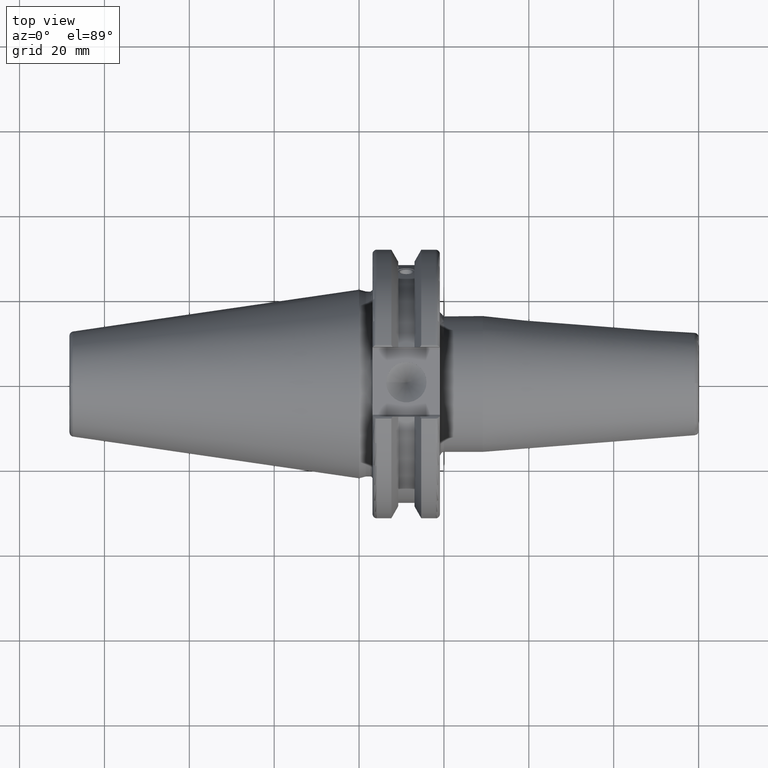
[diagram: clean part render]
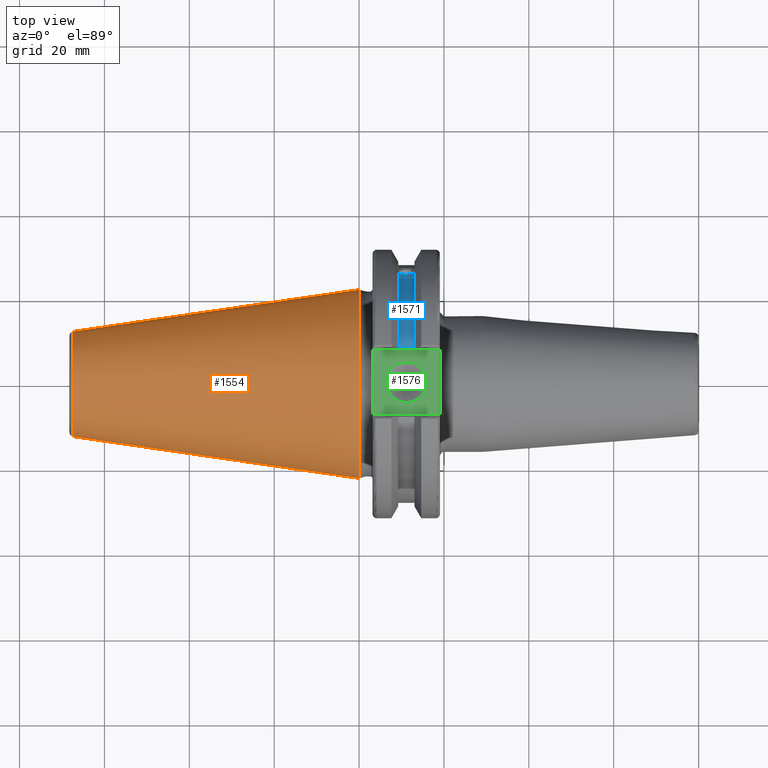
[diagram: same view with three faces highlighted in distinct colors, each labeled with its STEP entity id]
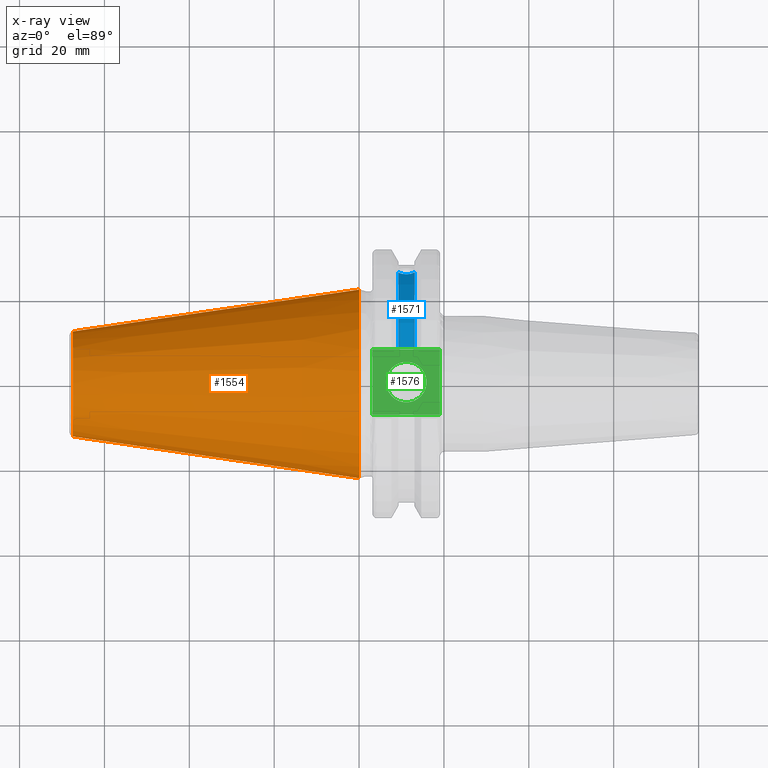
[diagram: x-ray of the same camera — body ghosted, the three highlighted faces saturated]
A machine part, top view with three faces highlighted in distinct colors.
The next image is the same camera in x-ray (body ghosted, the three faces saturated) — at least one of them is partly hidden behind the body in this view.
Their STEP definitions:

[orange] entity #1554 — the highlighted conical surface has half-angle 8.297 deg.
#182=LINE('',#2954,#276);
#276=VECTOR('',#2150,17.2484375);
#303=CONICAL_SURFACE('',#1747,17.2484375,0.144812498238939);
#421=FACE_OUTER_BOUND('',#523,.T.);
#523=EDGE_LOOP('',(#1354,#1355,#1356,#1357,#1358));
#613=CIRCLE('',#1741,12.3966635780937);
#614=CIRCLE('',#1742,12.3966635780937);
#618=CIRCLE('',#1748,22.225);
#769=VERTEX_POINT('',#2941);
#770=VERTEX_POINT('',#2942);
#773=VERTEX_POINT('',#2952);
#979=EDGE_CURVE('',#769,#770,#613,.T.);
#980=EDGE_CURVE('',#770,#769,#614,.T.);
#984=EDGE_CURVE('',#773,#773,#618,.T.);
#985=EDGE_CURVE('',#773,#770,#182,.T.);
#1354=ORIENTED_EDGE('',*,*,#984,.F.);
#1355=ORIENTED_EDGE('',*,*,#985,.T.);
#1356=ORIENTED_EDGE('',*,*,#979,.F.);
#1357=ORIENTED_EDGE('',*,*,#980,.F.);
#1358=ORIENTED_EDGE('',*,*,#985,.F.);
#1554=ADVANCED_FACE('',(#421),#303,.T.);
#1741=AXIS2_PLACEMENT_3D('',#2943,#2134,#2135);
#1742=AXIS2_PLACEMENT_3D('',#2944,#2136,#2137);
#1747=AXIS2_PLACEMENT_3D('',#2951,#2146,#2147);
#1748=AXIS2_PLACEMENT_3D('',#2953,#2148,#2149);
#2134=DIRECTION('center_axis',(-1.,0.,0.));
#2135=DIRECTION('ref_axis',(0.,-1.,3.06161699786838E-17));
#2136=DIRECTION('center_axis',(-1.,0.,0.));
#2137=DIRECTION('ref_axis',(0.,-1.,3.06161699786838E-17));
#2146=DIRECTION('center_axis',(1.,0.,0.));
#2147=DIRECTION('ref_axis',(0.,1.,0.));
#2148=DIRECTION('center_axis',(1.,0.,0.));
#2149=DIRECTION('ref_axis',(0.,0.,-1.));
#2150=DIRECTION('',(-0.989532981063282,0.144306893071729,1.76724974695192E-17));
#2941=CARTESIAN_POINT('',(-67.3943068930717,-1.5181534371019E-15,12.3966635780937));
#2942=CARTESIAN_POINT('',(-67.3943068930718,-12.3966635780937,-1.5181534371019E-15));
#2943=CARTESIAN_POINT('Origin',(-67.3943068930717,0.,-1.89769179637738E-15));
#2944=CARTESIAN_POINT('Origin',(-67.3943068930717,0.,-1.89769179637738E-15));
#2951=CARTESIAN_POINT('Origin',(-34.125,0.,0.));
#2952=CARTESIAN_POINT('',(0.,-22.225,-2.72177751110499E-15));
#2953=CARTESIAN_POINT('Origin',(0.,0.,0.));
#2954=CARTESIAN_POINT('',(-34.125,-17.2484375,-2.11232437746682E-15));

[blue] entity #1571 — the highlighted cylindrical surface (partial cylindrical patch) has radius 28.15 mm, axis along (1, 0, 0).
#61=B_SPLINE_CURVE_WITH_KNOTS('',3,(#2633,#2634,#2635,#2636,#2637,#2638,
#2639,#2640,#2641,#2642,#2643,#2644,#2645,#2646,#2647),.UNSPECIFIED.,.F.,
 .F.,(4,2,2,3,2,2,4),(-0.231446873660082,-0.158271583089134,-0.0791357915445672,
0.,0.0791357915445672,0.158271583089134,0.231446873660465),
 .UNSPECIFIED.);
#105=CYLINDRICAL_SURFACE('',#1769,28.15);
#190=LINE('',#2975,#284);
#284=VECTOR('',#2170,10.);
#438=FACE_OUTER_BOUND('',#540,.T.);
#540=EDGE_LOOP('',(#1430,#1431,#1432,#1433));
#622=CIRCLE('',#1768,28.15);
#623=CIRCLE('',#1770,28.15);
#710=VERTEX_POINT('',#2630);
#711=VERTEX_POINT('',#2632);
#776=VERTEX_POINT('',#2972);
#777=VERTEX_POINT('',#2974);
#892=EDGE_CURVE('',#711,#710,#61,.T.);
#994=EDGE_CURVE('',#777,#776,#190,.T.);
#1007=EDGE_CURVE('',#710,#777,#622,.T.);
#1008=EDGE_CURVE('',#711,#776,#623,.T.);
#1430=ORIENTED_EDGE('',*,*,#892,.T.);
#1431=ORIENTED_EDGE('',*,*,#1007,.T.);
#1432=ORIENTED_EDGE('',*,*,#994,.T.);
#1433=ORIENTED_EDGE('',*,*,#1008,.F.);
#1571=ADVANCED_FACE('',(#438),#105,.T.);
#1768=AXIS2_PLACEMENT_3D('',#3004,#2205,#2206);
#1769=AXIS2_PLACEMENT_3D('',#3005,#2207,#2208);
#1770=AXIS2_PLACEMENT_3D('',#3006,#2209,#2210);
#2170=DIRECTION('',(1.,0.,0.));
#2205=DIRECTION('center_axis',(1.,0.,0.));
#2206=DIRECTION('ref_axis',(0.,0.,-1.));
#2207=DIRECTION('center_axis',(1.,0.,0.));
#2208=DIRECTION('ref_axis',(0.,1.,0.));
#2209=DIRECTION('center_axis',(1.,0.,0.));
#2210=DIRECTION('ref_axis',(0.,0.,-1.));
#2630=CARTESIAN_POINT('',(9.2191,26.1451788594704,10.4332220529567));
#2632=CARTESIAN_POINT('',(13.0491,26.1451788594704,10.4332220529568));
#2633=CARTESIAN_POINT('Ctrl Pts',(13.0491,26.1451788594704,10.4332220529568));
#2634=CARTESIAN_POINT('Ctrl Pts',(12.9428694290343,26.0576536126147,10.6525563316816));
#2635=CARTESIAN_POINT('Ctrl Pts',(12.791379862294,25.9751489313128,10.8509873904882));
#2636=CARTESIAN_POINT('Ctrl Pts',(12.4326293734259,25.8346412777187,11.1816210830117));
#2637=CARTESIAN_POINT('Ctrl Pts',(12.1965549887012,25.7695111693635,11.3298867884858));
#2638=CARTESIAN_POINT('Ctrl Pts',(11.6791874573612,25.6822868299377,11.5262389251846));
#2639=CARTESIAN_POINT('Ctrl Pts',(11.3978859718152,25.6603958057616,11.5743935949859));
#2640=CARTESIAN_POINT('Ctrl Pts',(11.1341,25.6603958057616,11.5743935949859));
#2641=CARTESIAN_POINT('Ctrl Pts',(10.8703140281848,25.6603958057616,11.5743935949859));
#2642=CARTESIAN_POINT('Ctrl Pts',(10.5890125426388,25.6822868299377,11.5262389251846));
#2643=CARTESIAN_POINT('Ctrl Pts',(10.0716450112988,25.7695111693635,11.3298867884858));
#2644=CARTESIAN_POINT('Ctrl Pts',(9.83557062657411,25.8346412777187,11.1816210830117));
#2645=CARTESIAN_POINT('Ctrl Pts',(9.4768201377051,25.9751489313131,10.8509873904873));
#2646=CARTESIAN_POINT('Ctrl Pts',(9.32533057097183,26.0576536126096,10.6525563316942));
#2647=CARTESIAN_POINT('Ctrl Pts',(9.2191,26.1451788594704,10.4332220529567));
#2972=CARTESIAN_POINT('',(13.0491,8.19,26.932255754021));
#2974=CARTESIAN_POINT('',(9.2191,8.19,26.932255754021));
#2975=CARTESIAN_POINT('',(11.1341,8.19,26.932255754021));
#3004=CARTESIAN_POINT('Origin',(9.2191,0.,0.));
#3005=CARTESIAN_POINT('Origin',(11.1341,0.,0.));
#3006=CARTESIAN_POINT('Origin',(13.0491,0.,0.));

[green] entity #1576 — the highlighted planar face has unit normal (0, 0, 1).
#113=LINE('',#2293,#207);
#157=LINE('',#2732,#251);
#185=LINE('',#2961,#279);
#187=LINE('',#2964,#281);
#207=VECTOR('',#1841,10.);
#251=VECTOR('',#2067,10.);
#279=VECTOR('',#2161,10.);
#281=VECTOR('',#2165,10.);
#323=FACE_BOUND('',#546,.T.);
#359=PLANE('',#1778);
#443=FACE_OUTER_BOUND('',#545,.T.);
#545=EDGE_LOOP('',(#1455,#1456,#1457,#1458));
#546=EDGE_LOOP('',(#1459));
#621=CIRCLE('',#1766,4.7625);
#644=VERTEX_POINT('',#2290);
#645=VERTEX_POINT('',#2292);
#734=VERTEX_POINT('',#2729);
#735=VERTEX_POINT('',#2731);
#781=VERTEX_POINT('',#3000);
#804=EDGE_CURVE('',#644,#645,#113,.T.);
#925=EDGE_CURVE('',#734,#735,#157,.T.);
#988=EDGE_CURVE('',#645,#734,#185,.T.);
#990=EDGE_CURVE('',#735,#644,#187,.T.);
#1005=EDGE_CURVE('',#781,#781,#621,.T.);
#1455=ORIENTED_EDGE('',*,*,#988,.F.);
#1456=ORIENTED_EDGE('',*,*,#804,.F.);
#1457=ORIENTED_EDGE('',*,*,#990,.F.);
#1458=ORIENTED_EDGE('',*,*,#925,.F.);
#1459=ORIENTED_EDGE('',*,*,#1005,.T.);
#1576=ADVANCED_FACE('',(#443,#323),#359,.T.);
#1766=AXIS2_PLACEMENT_3D('',#3001,#2200,#2201);
#1778=AXIS2_PLACEMENT_3D('',#3014,#2225,#2226);
#1841=DIRECTION('',(0.,-1.,0.));
#2067=DIRECTION('',(0.,1.,0.));
#2161=DIRECTION('',(-1.,1.31581988103722E-16,0.));
#2165=DIRECTION('',(1.,0.,0.));
#2200=DIRECTION('center_axis',(0.,0.,-1.));
#2201=DIRECTION('ref_axis',(1.,0.,0.));
#2225=DIRECTION('center_axis',(0.,0.,1.));
#2226=DIRECTION('ref_axis',(1.,0.,0.));
#2290=CARTESIAN_POINT('',(19.05,7.69,25.));
#2292=CARTESIAN_POINT('',(19.05,-7.69,25.));
#2293=CARTESIAN_POINT('',(19.05,0.,25.));
#2729=CARTESIAN_POINT('',(3.175,-7.68999999999999,25.));
#2731=CARTESIAN_POINT('',(3.175,7.69,25.));
#2732=CARTESIAN_POINT('',(3.175,15.875,25.));
#2961=CARTESIAN_POINT('',(9.44125,-7.69,25.));
#2964=CARTESIAN_POINT('',(17.87875,7.69,25.));
#3000=CARTESIAN_POINT('',(6.3716,-5.83238038093927E-16,25.));
#3001=CARTESIAN_POINT('Origin',(11.1341,0.,25.));
#3014=CARTESIAN_POINT('Origin',(15.7075,0.,25.));